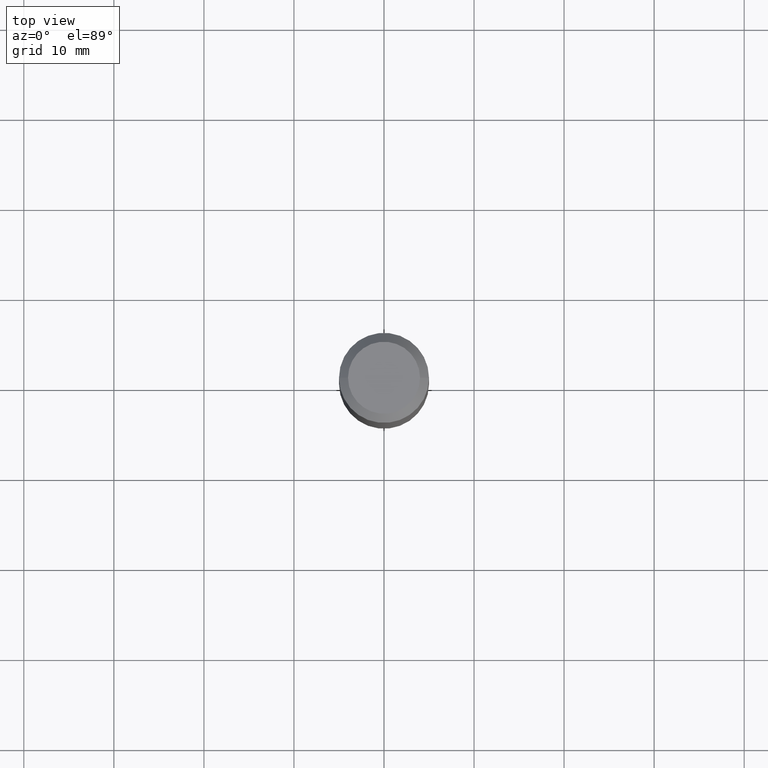
[diagram: clean part render]
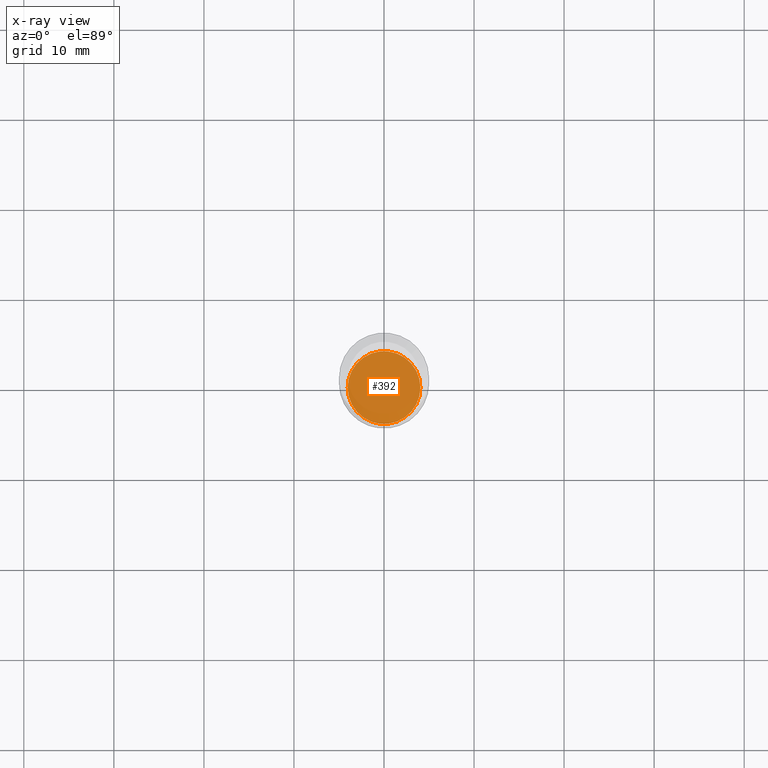
[diagram: x-ray — body ghosted, one internal face saturated and labeled with its STEP entity id]
A machine part, top view, then the same camera in x-ray: the body is ghosted and one INTERNAL B-rep face — a face not visible from any outside direction — is saturated and labeled: STEP entity #392.
In plain terms, the highlighted planar face has unit normal (-0, 0, 1).
Its self-contained STEP definition (entity closure, byte-faithful):
#21 = ORIENTED_EDGE ( 'NONE', *, *, #253, .F. ) ;
#48 = DIRECTION ( 'NONE',  ( -2.445468806185136597E-29, 3.491481338843145583E-15, 1.000000000000000000 ) ) ;
#54 = VERTEX_POINT ( 'NONE', #266 ) ;
#59 = ORIENTED_EDGE ( 'NONE', *, *, #118, .F. ) ;
#72 = DIRECTION ( 'NONE',  ( -2.445468806185136597E-29, 3.491481338843145583E-15, 1.000000000000000000 ) ) ;
#79 = CARTESIAN_POINT ( 'NONE',  ( 0.1589500000000000079, -9.788367933446756263E-15, -2.485600000000000254 ) ) ;
#118 = EDGE_CURVE ( 'NONE', #54, #231, #347, .T. ) ;
#129 = EDGE_LOOP ( 'NONE', ( #21, #59 ) ) ;
#153 = AXIS2_PLACEMENT_3D ( 'NONE', #407, #48, #484 ) ;
#191 = DIRECTION ( 'NONE',  ( -2.438088387897960049E-29, 3.491481338843145188E-15, 1.000000000000000000 ) ) ;
#228 = DIRECTION ( 'NONE',  ( 1.000000000000000000, -6.982962677686265922E-15, 4.876176775795935793E-29 ) ) ;
#231 = VERTEX_POINT ( 'NONE', #79 ) ;
#253 = EDGE_CURVE ( 'NONE', #231, #54, #382, .T. ) ;
#266 = CARTESIAN_POINT ( 'NONE',  ( -0.1589500000000000079, -7.546369110163733362E-15, -2.485600000000000254 ) ) ;
#279 = AXIS2_PLACEMENT_3D ( 'NONE', #433, #191, #228 ) ;
#314 = DIRECTION ( 'NONE',  ( 1.000000000000000000, -6.982962677686269866E-15, 0.000000000000000000 ) ) ;
#347 = CIRCLE ( 'NONE', #351, 0.1589500000000000079 ) ;
#351 = AXIS2_PLACEMENT_3D ( 'NONE', #355, #72, #314 ) ;
#355 = CARTESIAN_POINT ( 'NONE',  ( 6.078457264653775760E-29, -8.678426015828524062E-15, -2.485600000000000254 ) ) ;
#357 = FACE_OUTER_BOUND ( 'NONE', #129, .T. ) ;
#382 = CIRCLE ( 'NONE', #153, 0.1589500000000000079 ) ;
#392 = ADVANCED_FACE ( 'NONE', ( #357 ), #439, .F. ) ;
#407 = CARTESIAN_POINT ( 'NONE',  ( 6.078457264653775760E-29, -8.678426015828524062E-15, -2.485600000000000254 ) ) ;
#433 = CARTESIAN_POINT ( 'NONE',  ( 6.078457264653775760E-29, -8.678426015828524062E-15, -2.485600000000000254 ) ) ;
#439 = PLANE ( 'NONE',  #279 ) ;
#484 = DIRECTION ( 'NONE',  ( 1.000000000000000000, -6.982962677686269866E-15, 0.000000000000000000 ) ) ;